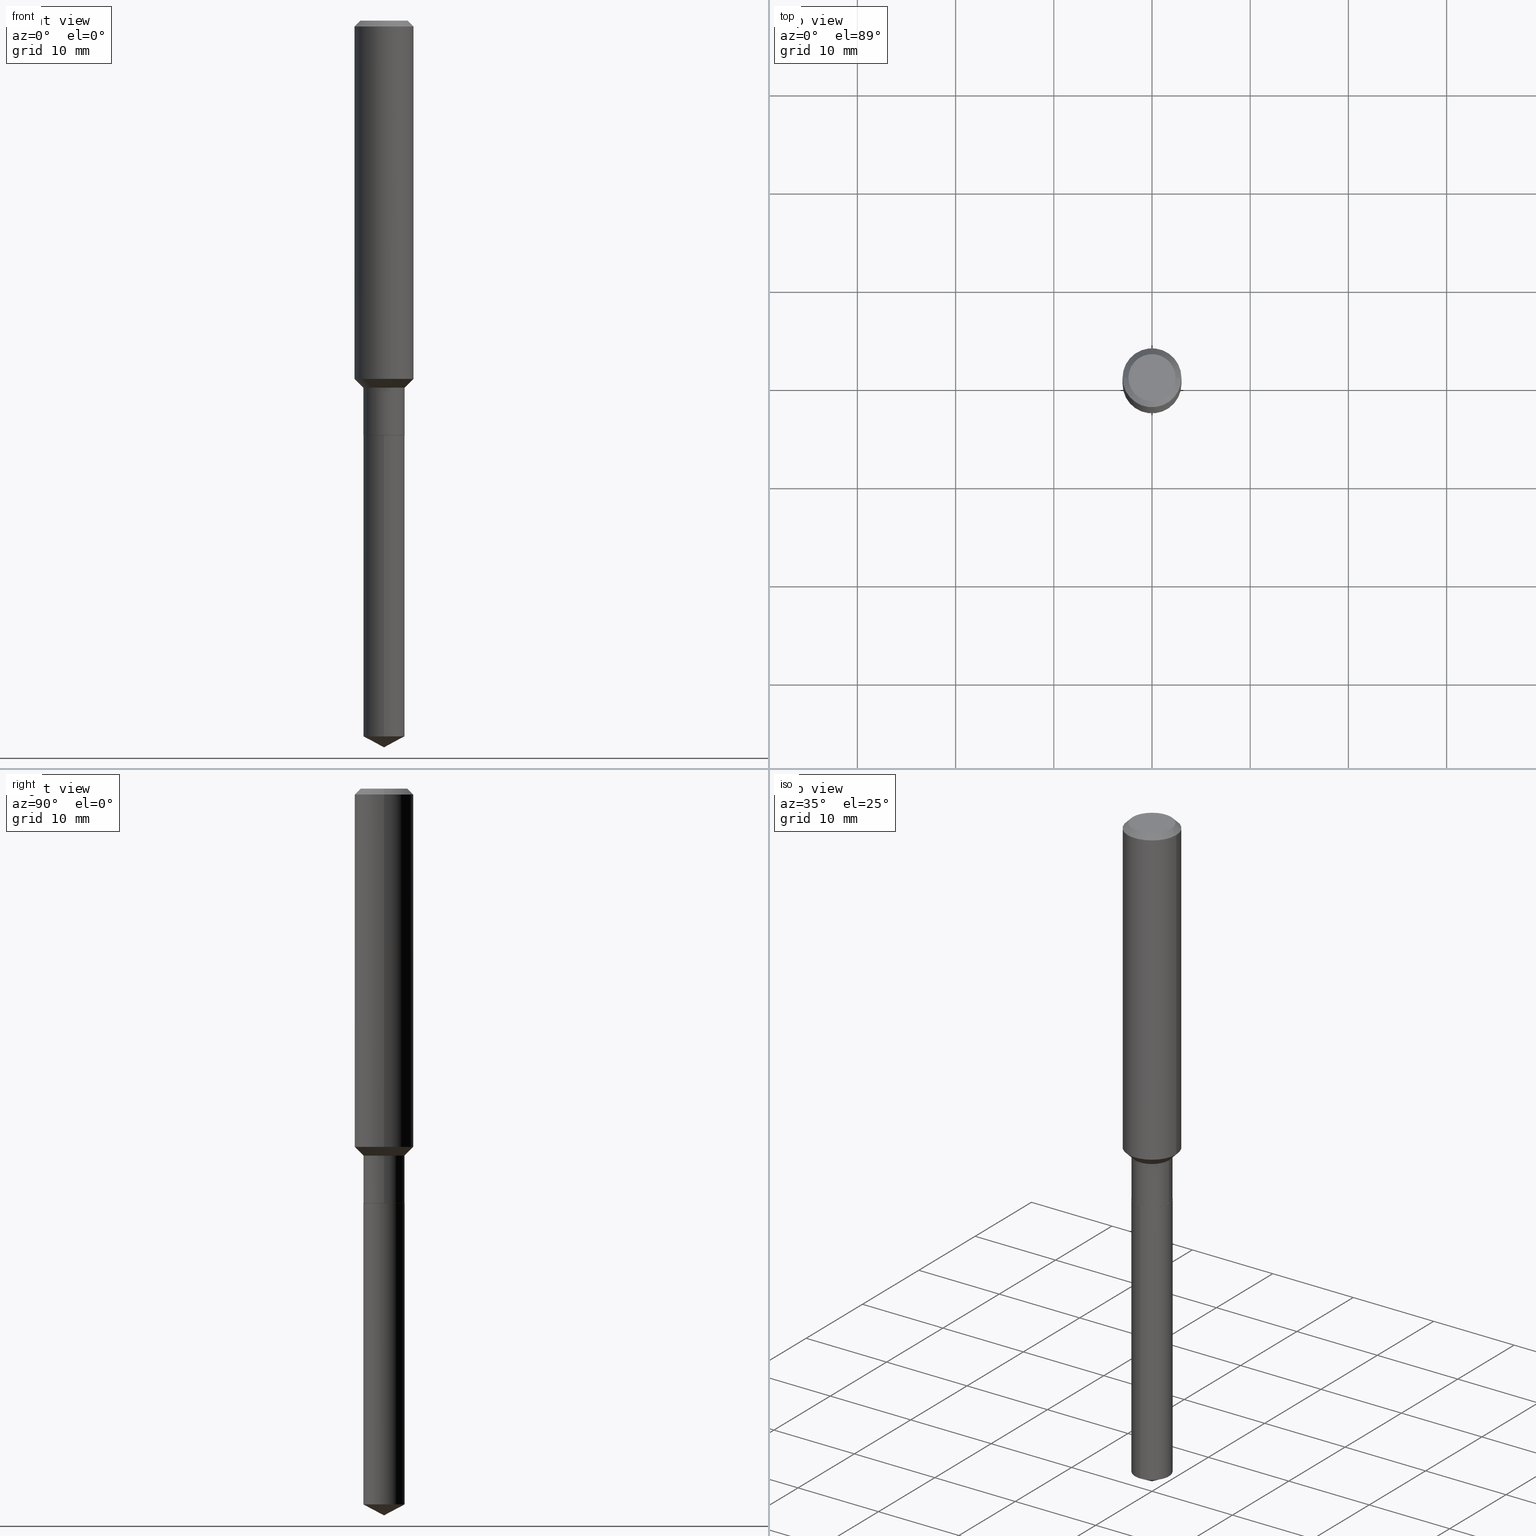
[diagram: canonical four-view strip — front | top / right | iso, engineering-drawing reading convention]
A machine part, canonical four-view strip (front | top / right | iso — engineering-drawing reading convention). The complete STEP part file that produces these views, byte-faithful:
ISO-10303-21;
HEADER;
FILE_DESCRIPTION (( 'STEP AP203' ),
    '1' );
FILE_NAME ('65172.STEP',
    '2024-04-24T20:55:12',
    ( '' ),
    ( '' ),
    'SwSTEP 2.0',
    'SolidWorks 2023',
    '' );
FILE_SCHEMA (( 'CONFIG_CONTROL_DESIGN' ));
ENDSEC;

DATA;
#1 = DIRECTION ( 'NONE',  ( -0.7071067811865459074, 2.468850131082240100E-15, -0.7071067811865491270 ) ) ;
#2 = CARTESIAN_POINT ( 'NONE',  ( -5.774910134445841753E-16, -0.08270000000001001550, -2.869427630001595286 ) ) ;
#3 = CARTESIAN_POINT ( 'NONE',  ( 0.000000000000000000, 0.000000000000000000, 0.000000000000000000 ) ) ;
#4 = CARTESIAN_POINT ( 'NONE',  ( -0.1181000000000000799, 8.391509709326788873E-16, -5.809262341591047988E-30 ) ) ;
#5 = FACE_OUTER_BOUND ( 'NONE', #310, .T. ) ;
#6 = DIRECTION ( 'NONE',  ( 1.000000000000000000, -6.982962677686267499E-15, 4.876176775795936353E-29 ) ) ;
#7 = VECTOR ( 'NONE', #84, 39.37007874015748143 ) ;
#8 = CONICAL_SURFACE ( 'NONE', #143, 0.1180999999999999966, 0.7853981633974460586 ) ;
#9 = PERSON_AND_ORGANIZATION ( #115, #89 ) ;
#10 = EDGE_LOOP ( 'NONE', ( #465, #201, #277, #60 ) ) ;
#11 = ORIENTED_EDGE ( 'NONE', *, *, #250, .T. ) ;
#12 = CC_DESIGN_PERSON_AND_ORGANIZATION_ASSIGNMENT ( #86, #437, ( #482 ) ) ;
#13 = PERSON_AND_ORGANIZATION_ROLE ( 'creator' ) ;
#14 = DIRECTION ( 'NONE',  ( 0.7071067811866320607, -2.468850131083142557E-15, 0.7071067811864629737 ) ) ;
#15 = CONICAL_SURFACE ( 'NONE', #166, 0.1180999999999999966, 0.7853981633974460586 ) ;
#16 = ORIENTED_EDGE ( 'NONE', *, *, #432, .F. ) ;
#17 = FACE_OUTER_BOUND ( 'NONE', #321, .T. ) ;
#18 = ORIENTED_EDGE ( 'NONE', *, *, #230, .F. ) ;
#19 = CALENDAR_DATE ( 2024, 24, 4 ) ;
#20 = VERTEX_POINT ( 'NONE', #2 ) ;
#21 = CARTESIAN_POINT ( 'NONE',  ( 0.08219999999999999529, -6.375095776593697590E-15, -1.661499999999999977 ) ) ;
#22 = EDGE_CURVE ( 'NONE', #346, #85, #257, .T. ) ;
#23 = MANIFOLD_SOLID_BREP ( 'Body-Move/Copy2[2]', #420 ) ;
#24 = AXIS2_PLACEMENT_3D ( 'NONE', #96, #401, #54 ) ;
#25 = ADVANCED_FACE ( 'NONE', ( #158 ), #15, .T. ) ;
#26 = DIRECTION ( 'NONE',  ( 1.000000000000000000, -6.982962677686266711E-15, 0.000000000000000000 ) ) ;
#27 = APPROVAL ( #309, 'UNSPECIFIED' ) ;
#28 = LINE ( 'NONE', #342, #485 ) ;
#29 = AXIS2_PLACEMENT_3D ( 'NONE', #379, #217, #144 ) ;
#30 = CIRCLE ( 'NONE', #220, 0.1181000000000001632 ) ;
#31 = CARTESIAN_POINT ( 'NONE',  ( 0.000000000000000000, 0.000000000000000000, 0.000000000000000000 ) ) ;
#32 = ADVANCED_FACE ( 'NONE', ( #423 ), #219, .T. ) ;
#33 = CARTESIAN_POINT ( 'NONE',  ( 0.000000000000000000, 0.000000000000000000, 0.000000000000000000 ) ) ;
#34 =( NAMED_UNIT ( * ) SI_UNIT ( $, .STERADIAN. ) SOLID_ANGLE_UNIT ( ) );
#35 = AXIS2_PLACEMENT_3D ( 'NONE', #42, #191, #411 ) ;
#36 = CARTESIAN_POINT ( 'NONE',  ( 0.08219999999999999529, -6.375095776593697590E-15, -1.661499999999999977 ) ) ;
#37 = LINE ( 'NONE', #146, #188 ) ;
#38 = CARTESIAN_POINT ( 'NONE',  ( 0.1181000000000000799, -8.246878922347486570E-16, 5.758764772215004644E-30 ) ) ;
#39 = DIRECTION ( 'NONE',  ( 1.000000000000000000, -6.982962677686272233E-15, 0.000000000000000000 ) ) ;
#40 = APPLICATION_CONTEXT ( 'configuration controlled 3d designs of mechanical parts and assemblies' ) ;
#41 = EDGE_LOOP ( 'NONE', ( #229, #361, #237, #271 ) ) ;
#42 = CARTESIAN_POINT ( 'NONE',  ( 7.017160943428417536E-29, -1.001845967804132223E-14, -2.869427630001595730 ) ) ;
#43 = CC_DESIGN_PERSON_AND_ORGANIZATION_ASSIGNMENT ( #315, #278, ( #318 ) ) ;
#44 = FACE_OUTER_BOUND ( 'NONE', #170, .T. ) ;
#45 = VERTEX_POINT ( 'NONE', #288 ) ;
#46 = APPROVAL_STATUS ( 'not_yet_approved' ) ;
#47 = VECTOR ( 'NONE', #468, 39.37007874015748143 ) ;
#48 = AXIS2_PLACEMENT_3D ( 'NONE', #194, #452, #422 ) ;
#49 = EDGE_CURVE ( 'NONE', #470, #370, #117, .T. ) ;
#50 = ORIENTED_EDGE ( 'NONE', *, *, #103, .F. ) ;
#51 = SECURITY_CLASSIFICATION_LEVEL ( 'unclassified' ) ;
#52 = EDGE_LOOP ( 'NONE', ( #399, #208, #444, #105 ) ) ;
#53 = APPROVAL_DATE_TIME ( #95, #27 ) ;
#54 = DIRECTION ( 'NONE',  ( 1.000000000000000000, -6.982962677686266711E-15, 0.000000000000000000 ) ) ;
#55 = ORIENTED_EDGE ( 'NONE', *, *, #461, .T. ) ;
#56 = PERSON_AND_ORGANIZATION_ROLE ( 'design_supplier' ) ;
#57 = DIRECTION ( 'NONE',  ( 1.000000000000000000, -6.982962677686267499E-15, 4.875432709231658792E-29 ) ) ;
#58 = AXIS2_PLACEMENT_3D ( 'NONE', #101, #216, #311 ) ;
#59 = CIRCLE ( 'NONE', #347, 0.08219999999999999529 ) ;
#60 = ORIENTED_EDGE ( 'NONE', *, *, #111, .F. ) ;
#61 = EDGE_CURVE ( 'NONE', #357, #177, #488, .T. ) ;
#62 = CARTESIAN_POINT ( 'NONE',  ( 4.063146421476604662E-29, -5.801096244487885918E-15, -1.661499999999999977 ) ) ;
#63 = ORIENTED_EDGE ( 'NONE', *, *, #140, .T. ) ;
#64 = ORIENTED_EDGE ( 'NONE', *, *, #150, .T. ) ;
#65 = EDGE_CURVE ( 'NONE', #177, #20, #317, .T. ) ;
#66 = LOCAL_TIME ( 16, 55, 12.00000000000000000, #348 ) ;
#67 = CARTESIAN_POINT ( 'NONE',  ( 0.08270000000000000961, -6.376841517263119883E-15, -1.661000000000000032 ) ) ;
#68 = DIRECTION ( 'NONE',  ( -1.000000000000000000, 6.982962677686266711E-15, 0.000000000000000000 ) ) ;
#69 = LINE ( 'NONE', #490, #308 ) ;
#70 = CARTESIAN_POINT ( 'NONE',  ( 7.017160943428417536E-29, -1.001845967804132223E-14, -2.869427630001595730 ) ) ;
#71 = VECTOR ( 'NONE', #279, 39.37007874015748143 ) ;
#72 = CC_DESIGN_APPROVAL ( #293, ( #377 ) ) ;
#73 = CARTESIAN_POINT ( 'NONE',  ( 0.1180999999999999966, -9.071566814582237199E-16, -0.02362000000000014088 ) ) ;
#74 = DIRECTION ( 'NONE',  ( -6.982962677686265922E-15, -1.000000000000000000, 3.303322846026920670E-15 ) ) ;
#75 = FACE_OUTER_BOUND ( 'NONE', #132, .T. ) ;
#76 = LINE ( 'NONE', #305, #299 ) ;
#77 = ADVANCED_FACE ( 'NONE', ( #44 ), #404, .T. ) ;
#78 = CIRCLE ( 'NONE', #380, 0.08219999999999999529 ) ;
#79 = VECTOR ( 'NONE', #155, 39.37007874015748143 ) ;
#80 = APPLICATION_PROTOCOL_DEFINITION ( 'international standard', 'config_control_design', 1994, #225 ) ;
#81 = LINE ( 'NONE', #228, #88 ) ;
#82 = ORIENTED_EDGE ( 'NONE', *, *, #150, .F. ) ;
#83 = CARTESIAN_POINT ( 'NONE',  ( -0.08269999999999998186, -4.549397651366317893E-15, -1.471300000000000274 ) ) ;
#84 = DIRECTION ( 'NONE',  ( -2.445468806185136877E-29, 3.491481338843145188E-15, 1.000000000000000000 ) ) ;
#85 = VERTEX_POINT ( 'NONE', #344 ) ;
#86 = PERSON_AND_ORGANIZATION ( #115, #89 ) ;
#87 = DATE_TIME_ROLE ( 'classification_date' ) ;
#88 = VECTOR ( 'NONE', #383, 39.37007874015748143 ) ;
#89 = ORGANIZATION ( 'UNSPECIFIED', 'UNSPECIFIED', '' ) ;
#90 = VERTEX_POINT ( 'NONE', #407 ) ;
#91 = DIRECTION ( 'NONE',  ( 1.000000000000000000, 0.000000000000000000, 0.000000000000000000 ) ) ;
#92 = EDGE_LOOP ( 'NONE', ( #205, #403, #396, #394 ) ) ;
#93 = DIRECTION ( 'NONE',  ( -2.445468806185136597E-29, 3.491481338843145583E-15, 1.000000000000000000 ) ) ;
#94 = ORIENTED_EDGE ( 'NONE', *, *, #483, .T. ) ;
#95 = DATE_AND_TIME ( #127, #429 ) ;
#96 = CARTESIAN_POINT ( 'NONE',  ( 5.776197320209327532E-31, -8.246878922347559293E-17, -0.02362000000000014088 ) ) ;
#97 = AXIS2_PLACEMENT_3D ( 'NONE', #212, #438, #173 ) ;
#98 = ORIENTED_EDGE ( 'NONE', *, *, #323, .T. ) ;
#99 = CARTESIAN_POINT ( 'NONE',  ( 4.063146421476604662E-29, -5.801096244487885918E-15, -1.661499999999999977 ) ) ;
#100 = EDGE_LOOP ( 'NONE', ( #463, #11 ) ) ;
#101 = CARTESIAN_POINT ( 'NONE',  ( -8.915572758393984802E-28, 1.272848678311759619E-13, 36.45667874015747856 ) ) ;
#102 = DIMENSIONAL_EXPONENTS ( 1.000000000000000000, 0.000000000000000000, 0.000000000000000000, 0.000000000000000000, 0.000000000000000000, 0.000000000000000000, 0.000000000000000000 ) ;
#103 = EDGE_CURVE ( 'NONE', #20, #442, #37, .T. ) ;
#104 = DIRECTION ( 'NONE',  ( 1.000000000000000000, -6.982962677686265922E-15, 4.876176775795935793E-29 ) ) ;
#105 = ORIENTED_EDGE ( 'NONE', *, *, #153, .F. ) ;
#106 = EDGE_CURVE ( 'NONE', #434, #139, #78, .T. ) ;
#107 = DIRECTION ( 'NONE',  ( -2.445522768568436429E-29, 3.491404061638911732E-15, 1.000000000000000000 ) ) ;
#108 = AXIS2_PLACEMENT_3D ( 'NONE', #263, #372, #26 ) ;
#109 = APPROVAL_PERSON_ORGANIZATION ( #388, #418, #199 ) ;
#110 = DIRECTION ( 'NONE',  ( 1.000000000000000000, -6.982962677686262766E-15, 0.000000000000000000 ) ) ;
#111 = EDGE_CURVE ( 'NONE', #370, #430, #121, .T. ) ;
#112 = DIRECTION ( 'NONE',  ( -2.445522768568436709E-29, 3.491404061638911732E-15, 1.000000000000000000 ) ) ;
#113 = CIRCLE ( 'NONE', #264, 0.08269999999999999574 ) ;
#114 = LINE ( 'NONE', #187, #300 ) ;
#115 = PERSON ( 'UNSPECIFIED', 'UNSPECIFIED', 'UNSPECIFIED', ('UNSPECIFIED'), ('UNSPECIFIED'), ('UNSPECIFIED') ) ;
#116 = CARTESIAN_POINT ( 'NONE',  ( 4.063146421476604662E-29, -5.801096244487885918E-15, -1.661499999999999977 ) ) ;
#117 = LINE ( 'NONE', #4, #7 ) ;
#118 = DIRECTION ( 'NONE',  ( -2.445468806185136597E-29, 3.491481338843145583E-15, 1.000000000000000000 ) ) ;
#119 = CARTESIAN_POINT ( 'NONE',  ( 5.876188424736729334E-16, 0.08269999999998998985, -2.869427630001596174 ) ) ;
#120 = CC_DESIGN_PERSON_AND_ORGANIZATION_ASSIGNMENT ( #431, #13, ( #377 ) ) ;
#121 = CIRCLE ( 'NONE', #108, 0.1180999999999999966 ) ;
#122 = CIRCLE ( 'NONE', #176, 0.09447999999999998066 ) ;
#123 = FACE_OUTER_BOUND ( 'NONE', #100, .T. ) ;
#124 = DIRECTION ( 'NONE',  ( 6.273719981627751877E-15, 0.8829475928589277656, 0.4694715627858890294 ) ) ;
#125 = ORIENTED_EDGE ( 'NONE', *, *, #425, .T. ) ;
#126 = CALENDAR_DATE ( 2024, 24, 4 ) ;
#127 = CALENDAR_DATE ( 2024, 24, 4 ) ;
#128 = ORIENTED_EDGE ( 'NONE', *, *, #250, .F. ) ;
#129 = DATE_AND_TIME ( #19, #131 ) ;
#130 = AXIS2_PLACEMENT_3D ( 'NONE', #459, #481, #39 ) ;
#131 = LOCAL_TIME ( 16, 55, 12.00000000000000000, #242 ) ;
#132 = EDGE_LOOP ( 'NONE', ( #164, #98, #82, #316 ) ) ;
#133 = COORDINATED_UNIVERSAL_TIME_OFFSET ( 5, 0, .BEHIND. ) ;
#134 = FACE_OUTER_BOUND ( 'NONE', #307, .T. ) ;
#135 = ADVANCED_FACE ( 'NONE', ( #182 ), #448, .T. ) ;
#136 = ORIENTED_EDGE ( 'NONE', *, *, #415, .F. ) ;
#137 = MECHANICAL_CONTEXT ( 'NONE', #225, 'mechanical' ) ;
#138 = CARTESIAN_POINT ( 'NONE',  ( 0.000000000000000000, 0.000000000000000000, 0.000000000000000000 ) ) ;
#139 = VERTEX_POINT ( 'NONE', #335 ) ;
#140 = EDGE_CURVE ( 'NONE', #177, #204, #28, .T. ) ;
#141 = CYLINDRICAL_SURFACE ( 'NONE', #327, 0.08269999999999999574 ) ;
#142 = VECTOR ( 'NONE', #14, 39.37007874015748143 ) ;
#143 = AXIS2_PLACEMENT_3D ( 'NONE', #215, #371, #181 ) ;
#144 = DIRECTION ( 'NONE',  ( -6.982962677686265922E-15, -1.000000000000000000, 3.303322846026920670E-15 ) ) ;
#145 = CARTESIAN_POINT ( 'NONE',  ( 0.09447999999999998066, -7.704367267948738690E-16, -1.928573779296752193E-17 ) ) ;
#146 = CARTESIAN_POINT ( 'NONE',  ( -5.774910134446135604E-16, -0.08270000000000579665, -1.661499999999999755 ) ) ;
#147 = AXIS2_PLACEMENT_3D ( 'NONE', #99, #276, #436 ) ;
#148 = DESIGN_CONTEXT ( 'detailed design', #40, 'design' ) ;
#149 = DIRECTION ( 'NONE',  ( -2.445468806185136597E-29, 3.491481338843145583E-15, 1.000000000000000000 ) ) ;
#150 = EDGE_CURVE ( 'NONE', #90, #387, #197, .T. ) ;
#151 = CARTESIAN_POINT ( 'NONE',  ( 3.511448658801237790E-29, -5.013418054444873531E-15, -1.435900000000000176 ) ) ;
#152 = LOCAL_TIME ( 16, 55, 12.00000000000000000, #133 ) ;
#153 = EDGE_CURVE ( 'NONE', #204, #442, #113, .T. ) ;
#154 = LENGTH_MEASURE_WITH_UNIT ( LENGTH_MEASURE( 0.02539999999999999897 ), #157 );
#155 = DIRECTION ( 'NONE',  ( -2.445468806185136877E-29, 3.491481338843145188E-15, 1.000000000000000000 ) ) ;
#156 = DIRECTION ( 'NONE',  ( -2.445522768568436429E-29, 3.491404061638911732E-15, 1.000000000000000000 ) ) ;
#157 =( LENGTH_UNIT ( ) NAMED_UNIT ( * ) SI_UNIT ( $, .METRE. ) );
#158 = FACE_OUTER_BOUND ( 'NONE', #313, .T. ) ;
#159 = AXIS2_PLACEMENT_3D ( 'NONE', #33, #268, #184 ) ;
#160 = ADVANCED_FACE ( 'NONE', ( #409 ), #282, .T. ) ;
#161 = ORIENTED_EDGE ( 'NONE', *, *, #218, .T. ) ;
#162 = DATE_AND_TIME ( #319, #381 ) ;
#163 = VERTEX_POINT ( 'NONE', #262 ) ;
#164 = ORIENTED_EDGE ( 'NONE', *, *, #22, .T. ) ;
#165 = APPROVAL_DATE_TIME ( #162, #418 ) ;
#166 = AXIS2_PLACEMENT_3D ( 'NONE', #386, #224, #68 ) ;
#167 = EDGE_CURVE ( 'NONE', #90, #163, #76, .T. ) ;
#168 = CC_DESIGN_APPROVAL ( #418, ( #340 ) ) ;
#169 = CYLINDRICAL_SURFACE ( 'NONE', #258, 0.08269999999999999574 ) ;
#170 = EDGE_LOOP ( 'NONE', ( #393, #280, #200, #214 ) ) ;
#171 = ORIENTED_EDGE ( 'NONE', *, *, #389, .T. ) ;
#172 = ORIENTED_EDGE ( 'NONE', *, *, #153, .T. ) ;
#173 = DIRECTION ( 'NONE',  ( 1.000000000000000000, -6.982962677686266711E-15, 4.876176775795936353E-29 ) ) ;
#174 = ORIENTED_EDGE ( 'NONE', *, *, #61, .F. ) ;
#175 = CYLINDRICAL_SURFACE ( 'NONE', #97, 0.1181000000000000799 ) ;
#176 = AXIS2_PLACEMENT_3D ( 'NONE', #406, #295, #338 ) ;
#177 = VERTEX_POINT ( 'NONE', #119 ) ;
#178 = EDGE_CURVE ( 'NONE', #357, #20, #81, .T. ) ;
#179 = FACE_OUTER_BOUND ( 'NONE', #472, .T. ) ;
#180 = ORIENTED_EDGE ( 'NONE', *, *, #167, .T. ) ;
#181 = DIRECTION ( 'NONE',  ( -1.000000000000000000, 6.982962677686266711E-15, 0.000000000000000000 ) ) ;
#182 = FACE_OUTER_BOUND ( 'NONE', #424, .T. ) ;
#183 = DIRECTION ( 'NONE',  ( -2.445468806185136597E-29, 3.491481338843145583E-15, 1.000000000000000000 ) ) ;
#184 = DIRECTION ( 'NONE',  ( 1.000000000000000000, -6.982962677686266711E-15, 4.876176775795936353E-29 ) ) ;
#185 = LINE ( 'NONE', #83, #336 ) ;
#186 = ADVANCED_FACE ( 'NONE', ( #360 ), #477, .T. ) ;
#187 = CARTESIAN_POINT ( 'NONE',  ( -0.1180999999999999966, 7.422191030112725094E-16, -0.02362000000000014088 ) ) ;
#188 = VECTOR ( 'NONE', #107, 39.37007874015748143 ) ;
#189 =( GEOMETRIC_REPRESENTATION_CONTEXT ( 3 ) GLOBAL_UNCERTAINTY_ASSIGNED_CONTEXT ( ( #445 ) ) GLOBAL_UNIT_ASSIGNED_CONTEXT ( ( #345, #456, #34 ) ) REPRESENTATION_CONTEXT ( 'NONE', 'WORKASPACE' ) );
#190 = ADVANCED_FACE ( 'NONE', ( #5 ), #367, .T. ) ;
#191 = DIRECTION ( 'NONE',  ( -2.445522768568436709E-29, 3.491404061638911732E-15, 1.000000000000000000 ) ) ;
#192 = DIRECTION ( 'NONE',  ( 1.000000000000000000, -6.982962677686262766E-15, 0.000000000000000000 ) ) ;
#193 = CARTESIAN_POINT ( 'NONE',  ( 4.063146421476604662E-29, -5.801096244487885918E-15, -1.661499999999999977 ) ) ;
#194 = CARTESIAN_POINT ( 'NONE',  ( 2.358133508849003952E-46, -3.366789680499277518E-32, -9.642868896486260050E-18 ) ) ;
#195 = ORIENTED_EDGE ( 'NONE', *, *, #297, .F. ) ;
#196 = ADVANCED_FACE ( 'NONE', ( #428 ), #175, .T. ) ;
#197 = CIRCLE ( 'NONE', #475, 0.08269999999999998186 ) ;
#198 = VECTOR ( 'NONE', #287, 39.37007874015748143 ) ;
#199 = APPROVAL_ROLE ( '' ) ;
#200 = ORIENTED_EDGE ( 'NONE', *, *, #22, .F. ) ;
#201 = ORIENTED_EDGE ( 'NONE', *, *, #352, .T. ) ;
#202 = PERSON_AND_ORGANIZATION ( #115, #89 ) ;
#203 = FACE_OUTER_BOUND ( 'NONE', #52, .T. ) ;
#204 = VERTEX_POINT ( 'NONE', #395 ) ;
#205 = ORIENTED_EDGE ( 'NONE', *, *, #323, .F. ) ;
#206 = EDGE_CURVE ( 'NONE', #139, #85, #244, .T. ) ;
#207 = AXIS2_PLACEMENT_3D ( 'NONE', #414, #112, #74 ) ;
#208 = ORIENTED_EDGE ( 'NONE', *, *, #65, .T. ) ;
#209 = DIRECTION ( 'NONE',  ( 1.000000000000000000, -6.982962677686270655E-15, 0.000000000000000000 ) ) ;
#210 = ADVANCED_FACE ( 'NONE', ( #369 ), #169, .T. ) ;
#211 = ORIENTED_EDGE ( 'NONE', *, *, #425, .F. ) ;
#212 = CARTESIAN_POINT ( 'NONE',  ( 0.000000000000000000, 0.000000000000000000, 0.000000000000000000 ) ) ;
#213 = CIRCLE ( 'NONE', #236, 0.1181000000000001632 ) ;
#214 = ORIENTED_EDGE ( 'NONE', *, *, #218, .F. ) ;
#215 = CARTESIAN_POINT ( 'NONE',  ( 5.776197320209327532E-31, -8.246878922347559293E-17, -0.02362000000000014088 ) ) ;
#216 = DIRECTION ( 'NONE',  ( -2.445522768568436709E-29, 3.491404061638911732E-15, 1.000000000000000000 ) ) ;
#217 = DIRECTION ( 'NONE',  ( -2.445522768568436709E-29, 3.491404061638911732E-15, 1.000000000000000000 ) ) ;
#218 = EDGE_CURVE ( 'NONE', #434, #346, #398, .T. ) ;
#219 = CYLINDRICAL_SURFACE ( 'NONE', #29, 0.08269999999999999574 ) ;
#220 = AXIS2_PLACEMENT_3D ( 'NONE', #247, #402, #209 ) ;
#221 = CARTESIAN_POINT ( 'NONE',  ( 3.598018254540192216E-29, -5.137016493839921505E-15, -1.471300000000000274 ) ) ;
#222 = ADVANCED_FACE ( 'NONE', ( #179 ), #390, .T. ) ;
#223 = DIRECTION ( 'NONE',  ( 1.000000000000000000, -6.982962677686272233E-15, 0.000000000000000000 ) ) ;
#224 = DIRECTION ( 'NONE',  ( 2.445468806185136597E-29, -3.491481338843145583E-15, -1.000000000000000000 ) ) ;
#225 = APPLICATION_CONTEXT ( 'configuration controlled 3d designs of mechanical parts and assemblies' ) ;
#226 = AXIS2_PLACEMENT_3D ( 'NONE', #478, #284, #57 ) ;
#227 = DIRECTION ( 'NONE',  ( -2.445468806185136597E-29, 3.491481338843145583E-15, 1.000000000000000000 ) ) ;
#228 = CARTESIAN_POINT ( 'NONE',  ( 7.124606716947576812E-29, -1.017211338532847667E-14, -2.913400000000000212 ) ) ;
#229 = ORIENTED_EDGE ( 'NONE', *, *, #297, .T. ) ;
#230 = EDGE_CURVE ( 'NONE', #330, #430, #446, .T. ) ;
#231 = CARTESIAN_POINT ( 'NONE',  ( -5.774910134446135604E-16, -0.08270000000000579665, -1.661499999999999755 ) ) ;
#232 = DIRECTION ( 'NONE',  ( -2.445522768568436709E-29, 3.491404061638911732E-15, 1.000000000000000000 ) ) ;
#233 = ORIENTED_EDGE ( 'NONE', *, *, #352, .F. ) ;
#234 = PERSON_AND_ORGANIZATION ( #115, #89 ) ;
#235 = ORIENTED_EDGE ( 'NONE', *, *, #61, .T. ) ;
#236 = AXIS2_PLACEMENT_3D ( 'NONE', #151, #334, #450 ) ;
#237 = ORIENTED_EDGE ( 'NONE', *, *, #260, .F. ) ;
#238 = CARTESIAN_POINT ( 'NONE',  ( 4.063146421476604662E-29, -5.801096244487885918E-15, -1.661499999999999977 ) ) ;
#239 = ORIENTED_EDGE ( 'NONE', *, *, #483, .F. ) ;
#240 = ORIENTED_EDGE ( 'NONE', *, *, #303, .F. ) ;
#241 = PLANE ( 'NONE',  #421 ) ;
#242 = COORDINATED_UNIVERSAL_TIME_OFFSET ( 5, 0, .BEHIND. ) ;
#243 = AXIS2_PLACEMENT_3D ( 'NONE', #302, #149, #301 ) ;
#244 = LINE ( 'NONE', #363, #71 ) ;
#245 = ORIENTED_EDGE ( 'NONE', *, *, #230, .T. ) ;
#246 = ADVANCED_FACE ( 'NONE', ( #17 ), #241, .F. ) ;
#247 = CARTESIAN_POINT ( 'NONE',  ( 3.511448658801237790E-29, -5.013418054444873531E-15, -1.435900000000000176 ) ) ;
#248 = ORIENTED_EDGE ( 'NONE', *, *, #178, .F. ) ;
#249 = DIRECTION ( 'NONE',  ( -6.982962677686265922E-15, -1.000000000000000000, 6.606645692053841341E-15 ) ) ;
#250 = EDGE_CURVE ( 'NONE', #330, #45, #328, .T. ) ;
#251 = CARTESIAN_POINT ( 'NONE',  ( 7.124786033947283552E-29, -1.017185659317880752E-14, -2.913400000000000212 ) ) ;
#252 = DIRECTION ( 'NONE',  ( -2.445522768568436709E-29, 3.491404061638911732E-15, 1.000000000000000000 ) ) ;
#253 = CC_DESIGN_DATE_AND_TIME_ASSIGNMENT ( #129, #87, ( #340 ) ) ;
#254 = DIRECTION ( 'NONE',  ( -2.445468806185136597E-29, 3.491481338843145583E-15, 1.000000000000000000 ) ) ;
#255 = CYLINDRICAL_SURFACE ( 'NONE', #283, 0.08269999999999999574 ) ;
#256 = DIRECTION ( 'NONE',  ( 1.000000000000000000, -6.982962677686266711E-15, 0.000000000000000000 ) ) ;
#257 = CIRCLE ( 'NONE', #130, 0.08270000000000000961 ) ;
#258 = AXIS2_PLACEMENT_3D ( 'NONE', #138, #93, #329 ) ;
#259 = CARTESIAN_POINT ( 'NONE',  ( 4.061923687073511860E-29, -5.799350503818465203E-15, -1.661000000000000032 ) ) ;
#260 = EDGE_CURVE ( 'NONE', #430, #370, #440, .T. ) ;
#261 = FACE_OUTER_BOUND ( 'NONE', #325, .T. ) ;
#262 = CARTESIAN_POINT ( 'NONE',  ( 0.1181000000000001632, -5.838105946679621793E-15, -1.435900000000000176 ) ) ;
#263 = CARTESIAN_POINT ( 'NONE',  ( 5.776197320209327532E-31, -8.246878922347559293E-17, -0.02362000000000014088 ) ) ;
#264 = AXIS2_PLACEMENT_3D ( 'NONE', #419, #252, #267 ) ;
#265 = APPROVAL_PERSON_ORGANIZATION ( #202, #27, #275 ) ;
#266 = DIRECTION ( 'NONE',  ( -0.7071067811865482389, 7.493145998870357316E-15, 0.7071067811865467956 ) ) ;
#267 = DIRECTION ( 'NONE',  ( -6.982962677686265922E-15, -1.000000000000000000, 3.303322846026920670E-15 ) ) ;
#268 = DIRECTION ( 'NONE',  ( -2.445468806185136597E-29, 3.491481338843145583E-15, 1.000000000000000000 ) ) ;
#269 = CALENDAR_DATE ( 2024, 24, 4 ) ;
#270 = ADVANCED_FACE ( 'NONE', ( #203 ), #141, .T. ) ;
#271 = ORIENTED_EDGE ( 'NONE', *, *, #487, .F. ) ;
#272 = CONICAL_SURFACE ( 'NONE', #454, 0.08219999999999999529, 0.7853981633975678500 ) ;
#273 = PERSON_AND_ORGANIZATION ( #115, #89 ) ;
#274 = ORIENTED_EDGE ( 'NONE', *, *, #65, .F. ) ;
#275 = APPROVAL_ROLE ( '' ) ;
#276 = DIRECTION ( 'NONE',  ( 2.445522768568436429E-29, -3.491404061638911732E-15, -1.000000000000000000 ) ) ;
#277 = ORIENTED_EDGE ( 'NONE', *, *, #487, .T. ) ;
#278 = PERSON_AND_ORGANIZATION_ROLE ( 'creator' ) ;
#279 = DIRECTION ( 'NONE',  ( -0.7071067811866320607, 7.493145998870660238E-15, 0.7071067811864629737 ) ) ;
#280 = ORIENTED_EDGE ( 'NONE', *, *, #206, .T. ) ;
#281 = ADVANCED_FACE ( 'NONE', ( #134 ), #441, .F. ) ;
#282 = CONICAL_SURFACE ( 'NONE', #243, 0.08269999999999998186, 0.7853981633974492782 ) ;
#283 = AXIS2_PLACEMENT_3D ( 'NONE', #31, #118, #6 ) ;
#284 = DIRECTION ( 'NONE',  ( -2.445468806185136597E-29, 3.491481338843145583E-15, 1.000000000000000000 ) ) ;
#285 = EDGE_LOOP ( 'NONE', ( #18, #351, #171, #364 ) ) ;
#286 = CC_DESIGN_PERSON_AND_ORGANIZATION_ASSIGNMENT ( #234, #353, ( #340 ) ) ;
#287 = DIRECTION ( 'NONE',  ( -2.445468806185136877E-29, 3.491481338843145188E-15, 1.000000000000000000 ) ) ;
#288 = CARTESIAN_POINT ( 'NONE',  ( -0.09447999999999998066, 7.009847083995354710E-16, -1.928573779297727792E-17 ) ) ;
#289 = VECTOR ( 'NONE', #124, 39.37007874015748854 ) ;
#290 = FACE_OUTER_BOUND ( 'NONE', #285, .T. ) ;
#291 = LINE ( 'NONE', #412, #198 ) ;
#292 = AXIS2_PLACEMENT_3D ( 'NONE', #320, #332, #324 ) ;
#293 = APPROVAL ( #359, 'UNSPECIFIED' ) ;
#294 = DIRECTION ( 'NONE',  ( -2.445468806185136597E-29, 3.491481338843145583E-15, 1.000000000000000000 ) ) ;
#295 = DIRECTION ( 'NONE',  ( -2.445468806185136597E-29, 3.491481338843145583E-15, 1.000000000000000000 ) ) ;
#296 = PRODUCT_DEFINITION_SHAPE ( 'NONE', 'NONE',  #377 ) ;
#297 = EDGE_CURVE ( 'NONE', #163, #470, #30, .T. ) ;
#298 = DIRECTION ( 'NONE',  ( 1.000000000000000000, -6.982962677686262766E-15, 0.000000000000000000 ) ) ;
#299 = VECTOR ( 'NONE', #457, 39.37007874015748143 ) ;
#300 = VECTOR ( 'NONE', #1, 39.37007874015748143 ) ;
#301 = DIRECTION ( 'NONE',  ( 1.000000000000000000, -6.982962677686262766E-15, 0.000000000000000000 ) ) ;
#302 = CARTESIAN_POINT ( 'NONE',  ( 3.598018254540192216E-29, -5.137016493839921505E-15, -1.471300000000000274 ) ) ;
#303 = EDGE_CURVE ( 'NONE', #139, #434, #59, .T. ) ;
#304 = DIRECTION ( 'NONE',  ( -2.445468806185136597E-29, 3.491481338843145583E-15, 1.000000000000000000 ) ) ;
#305 = CARTESIAN_POINT ( 'NONE',  ( 0.08269999999999998186, -5.714507507284574607E-15, -1.471300000000000274 ) ) ;
#306 = AXIS2_PLACEMENT_3D ( 'NONE', #455, #417, #192 ) ;
#307 = EDGE_LOOP ( 'NONE', ( #474, #172 ) ) ;
#308 = VECTOR ( 'NONE', #376, 39.37007874015748143 ) ;
#309 = APPROVAL_STATUS ( 'not_yet_approved' ) ;
#310 = EDGE_LOOP ( 'NONE', ( #174, #439, #274 ) ) ;
#311 = DIRECTION ( 'NONE',  ( -6.982962677686267499E-15, -1.000000000000000000, 3.541896320645593212E-15 ) ) ;
#312 = ADVANCED_BREP_SHAPE_REPRESENTATION ( '65172', ( #354, #23, #486 ), #189 ) ;
#313 = EDGE_LOOP ( 'NONE', ( #128, #245, #356, #479 ) ) ;
#314 = CC_DESIGN_PERSON_AND_ORGANIZATION_ASSIGNMENT ( #273, #56, ( #318 ) ) ;
#315 = PERSON_AND_ORGANIZATION ( #115, #89 ) ;
#316 = ORIENTED_EDGE ( 'NONE', *, *, #374, .F. ) ;
#317 = CIRCLE ( 'NONE', #326, 0.08269999999999999574 ) ;
#318 = PRODUCT_DEFINITION_FORMATION_WITH_SPECIFIED_SOURCE ( 'ANY', '', #482, .NOT_KNOWN. ) ;
#319 = CALENDAR_DATE ( 2024, 24, 4 ) ;
#320 = CARTESIAN_POINT ( 'NONE',  ( -8.915572758393984802E-28, 1.272848678311759619E-13, 36.45667874015747856 ) ) ;
#321 = EDGE_LOOP ( 'NONE', ( #469, #240 ) ) ;
#322 = COORDINATED_UNIVERSAL_TIME_OFFSET ( 5, 0, .BEHIND. ) ;
#323 = EDGE_CURVE ( 'NONE', #85, #387, #291, .T. ) ;
#324 = DIRECTION ( 'NONE',  ( -6.982962677686267499E-15, -1.000000000000000000, 3.541896320645593212E-15 ) ) ;
#325 = EDGE_LOOP ( 'NONE', ( #366, #433, #161, #136 ) ) ;
#326 = AXIS2_PLACEMENT_3D ( 'NONE', #70, #232, #249 ) ;
#327 = AXIS2_PLACEMENT_3D ( 'NONE', #62, #473, #355 ) ;
#328 = CIRCLE ( 'NONE', #226, 0.09447999999999998066 ) ;
#329 = DIRECTION ( 'NONE',  ( 1.000000000000000000, -6.982962677686267499E-15, 4.876176775795936353E-29 ) ) ;
#330 = VERTEX_POINT ( 'NONE', #145 ) ;
#331 = EDGE_CURVE ( 'NONE', #45, #330, #122, .T. ) ;
#332 = DIRECTION ( 'NONE',  ( -2.445522768568436709E-29, 3.491404061638911732E-15, 1.000000000000000000 ) ) ;
#333 = CARTESIAN_POINT ( 'NONE',  ( 4.063146421476604662E-29, -5.801096244487885918E-15, -1.661499999999999977 ) ) ;
#334 = DIRECTION ( 'NONE',  ( -2.445468806185136597E-29, 3.491481338843145583E-15, 1.000000000000000000 ) ) ;
#335 = CARTESIAN_POINT ( 'NONE',  ( -0.08219999999999999529, -5.214380888518972792E-15, -1.661499999999999977 ) ) ;
#336 = VECTOR ( 'NONE', #266, 39.37007874015748143 ) ;
#337 = CARTESIAN_POINT ( 'NONE',  ( 7.124787606345704001E-29, -1.017185659317880752E-14, -2.913400000000000212 ) ) ;
#338 = DIRECTION ( 'NONE',  ( 1.000000000000000000, -6.982962677686267499E-15, 4.875432709231658792E-29 ) ) ;
#339 = DIRECTION ( 'NONE',  ( -2.445468806185136597E-29, 3.491481338843145583E-15, 1.000000000000000000 ) ) ;
#340 = SECURITY_CLASSIFICATION ( '', '', #51 ) ;
#341 = CARTESIAN_POINT ( 'NONE',  ( -0.08269999999999998186, -4.880564656355590136E-15, -1.471300000000000274 ) ) ;
#342 = CARTESIAN_POINT ( 'NONE',  ( 5.876188424736433512E-16, 0.08269999999999419482, -1.661500000000000199 ) ) ;
#343 = PRODUCT_RELATED_PRODUCT_CATEGORY ( 'detail', '', ( #482 ) ) ;
#344 = CARTESIAN_POINT ( 'NONE',  ( -0.08270000000000000961, -4.880564656355590136E-15, -1.661000000000000032 ) ) ;
#345 =( CONVERSION_BASED_UNIT ( 'INCH', #154 ) LENGTH_UNIT ( ) NAMED_UNIT ( #102 ) );
#346 = VERTEX_POINT ( 'NONE', #67 ) ;
#347 = AXIS2_PLACEMENT_3D ( 'NONE', #365, #254, #256 ) ;
#348 = COORDINATED_UNIVERSAL_TIME_OFFSET ( 5, 0, .BEHIND. ) ;
#349 = ADVANCED_FACE ( 'NONE', ( #290 ), #8, .T. ) ;
#350 = ORIENTED_EDGE ( 'NONE', *, *, #167, .F. ) ;
#351 = ORIENTED_EDGE ( 'NONE', *, *, #331, .F. ) ;
#352 = EDGE_CURVE ( 'NONE', #470, #163, #213, .T. ) ;
#353 = PERSON_AND_ORGANIZATION_ROLE ( 'classification_officer' ) ;
#354 = MANIFOLD_SOLID_BREP ( 'Body-Move/Copy2[1]', #410 ) ;
#355 = DIRECTION ( 'NONE',  ( -6.982962677686265922E-15, -1.000000000000000000, 3.303322846026920670E-15 ) ) ;
#356 = ORIENTED_EDGE ( 'NONE', *, *, #260, .T. ) ;
#357 = VERTEX_POINT ( 'NONE', #251 ) ;
#358 = AXIS2_PLACEMENT_3D ( 'NONE', #333, #294, #447 ) ;
#359 = APPROVAL_STATUS ( 'not_yet_approved' ) ;
#360 = FACE_OUTER_BOUND ( 'NONE', #10, .T. ) ;
#361 = ORIENTED_EDGE ( 'NONE', *, *, #49, .T. ) ;
#362 = CC_DESIGN_DATE_AND_TIME_ASSIGNMENT ( #426, #427, ( #377 ) ) ;
#363 = CARTESIAN_POINT ( 'NONE',  ( -0.08219999999999999529, -5.217030115693083993E-15, -1.661499999999999977 ) ) ;
#364 = ORIENTED_EDGE ( 'NONE', *, *, #111, .T. ) ;
#365 = CARTESIAN_POINT ( 'NONE',  ( 4.063146421476604662E-29, -5.801096244487885918E-15, -1.661499999999999977 ) ) ;
#366 = ORIENTED_EDGE ( 'NONE', *, *, #206, .F. ) ;
#367 = CONICAL_SURFACE ( 'NONE', #58, 74.04434902938285745, 1.082104136236482717 ) ;
#368 = AXIS2_PLACEMENT_3D ( 'NONE', #221, #339, #298 ) ;
#369 = FACE_OUTER_BOUND ( 'NONE', #92, .T. ) ;
#370 = VERTEX_POINT ( 'NONE', #408 ) ;
#371 = DIRECTION ( 'NONE',  ( 2.445468806185136597E-29, -3.491481338843145583E-15, -1.000000000000000000 ) ) ;
#372 = DIRECTION ( 'NONE',  ( -2.445468806185136597E-29, 3.491481338843145583E-15, 1.000000000000000000 ) ) ;
#373 = DIRECTION ( 'NONE',  ( 1.000000000000000000, -6.982962677686266711E-15, 0.000000000000000000 ) ) ;
#374 = EDGE_CURVE ( 'NONE', #346, #90, #69, .T. ) ;
#375 = CIRCLE ( 'NONE', #207, 0.08269999999999999574 ) ;
#376 = DIRECTION ( 'NONE',  ( -2.445468806185136877E-29, 3.491481338843145188E-15, 1.000000000000000000 ) ) ;
#377 = PRODUCT_DEFINITION ( 'UNKNOWN', '', #318, #148 ) ;
#378 = CARTESIAN_POINT ( 'NONE',  ( -0.1181000000000001632, -4.174267083512193756E-15, -1.435900000000000176 ) ) ;
#379 = CARTESIAN_POINT ( 'NONE',  ( 4.063146421476604662E-29, -5.801096244487885918E-15, -1.661499999999999977 ) ) ;
#380 = AXIS2_PLACEMENT_3D ( 'NONE', #193, #183, #373 ) ;
#381 = LOCAL_TIME ( 16, 55, 12.00000000000000000, #435 ) ;
#382 = ADVANCED_FACE ( 'NONE', ( #261 ), #272, .T. ) ;
#383 = DIRECTION ( 'NONE',  ( -6.165590087286821830E-15, -0.8829475928589244349, 0.4694715627858953022 ) ) ;
#384 = EDGE_LOOP ( 'NONE', ( #94, #63, #16, #50 ) ) ;
#385 = LINE ( 'NONE', #38, #79 ) ;
#386 = CARTESIAN_POINT ( 'NONE',  ( 5.776197320209327532E-31, -8.246878922347559293E-17, -0.02362000000000014088 ) ) ;
#387 = VERTEX_POINT ( 'NONE', #341 ) ;
#388 = PERSON_AND_ORGANIZATION ( #115, #89 ) ;
#389 = EDGE_CURVE ( 'NONE', #45, #370, #114, .T. ) ;
#390 = CONICAL_SURFACE ( 'NONE', #292, 74.04434902938285745, 1.082104136236482717 ) ;
#391 = EDGE_LOOP ( 'NONE', ( #64, #125, #195, #350 ) ) ;
#392 = SHAPE_DEFINITION_REPRESENTATION ( #296, #312 ) ;
#393 = ORIENTED_EDGE ( 'NONE', *, *, #106, .T. ) ;
#394 = ORIENTED_EDGE ( 'NONE', *, *, #461, .F. ) ;
#395 = CARTESIAN_POINT ( 'NONE',  ( 5.876188424736729334E-16, 0.08269999999999419482, -1.661500000000000199 ) ) ;
#396 = ORIENTED_EDGE ( 'NONE', *, *, #374, .T. ) ;
#397 = ADVANCED_FACE ( 'NONE', ( #123 ), #416, .F. ) ;
#398 = LINE ( 'NONE', #21, #142 ) ;
#399 = ORIENTED_EDGE ( 'NONE', *, *, #140, .F. ) ;
#400 = CIRCLE ( 'NONE', #35, 0.08269999999999999574 ) ;
#401 = DIRECTION ( 'NONE',  ( -2.445468806185136597E-29, 3.491481338843145583E-15, 1.000000000000000000 ) ) ;
#402 = DIRECTION ( 'NONE',  ( -2.445468806185136597E-29, 3.491481338843145583E-15, 1.000000000000000000 ) ) ;
#403 = ORIENTED_EDGE ( 'NONE', *, *, #415, .T. ) ;
#404 = CONICAL_SURFACE ( 'NONE', #358, 0.08219999999999999529, 0.7853981633975678500 ) ;
#405 = CIRCLE ( 'NONE', #413, 0.08270000000000000961 ) ;
#406 = CARTESIAN_POINT ( 'NONE',  ( 4.716267017698007905E-46, -6.733579360998555036E-32, -1.928573779297252010E-17 ) ) ;
#407 = CARTESIAN_POINT ( 'NONE',  ( 0.08269999999999998186, -5.714507507284574607E-15, -1.471300000000000274 ) ) ;
#408 = CARTESIAN_POINT ( 'NONE',  ( -0.1180999999999999966, -1.708792450901494916E-15, -0.02362000000000014088 ) ) ;
#409 = FACE_OUTER_BOUND ( 'NONE', #391, .T. ) ;
#410 = CLOSED_SHELL ( 'NONE', ( #32, #222, #190, #270, #281 ) ) ;
#411 = DIRECTION ( 'NONE',  ( -6.982962677686265922E-15, -1.000000000000000000, 6.606645692053841341E-15 ) ) ;
#412 = CARTESIAN_POINT ( 'NONE',  ( -0.08269999999999999574, 5.876188424736028234E-16, -4.067959319640806904E-30 ) ) ;
#413 = AXIS2_PLACEMENT_3D ( 'NONE', #259, #304, #223 ) ;
#414 = CARTESIAN_POINT ( 'NONE',  ( 4.063146421476604662E-29, -5.801096244487885918E-15, -1.661499999999999977 ) ) ;
#415 = EDGE_CURVE ( 'NONE', #85, #346, #405, .T. ) ;
#416 = PLANE ( 'NONE',  #48 ) ;
#417 = DIRECTION ( 'NONE',  ( -2.445468806185136597E-29, 3.491481338843145583E-15, 1.000000000000000000 ) ) ;
#418 = APPROVAL ( #46, 'UNSPECIFIED' ) ;
#419 = CARTESIAN_POINT ( 'NONE',  ( 4.063146421476604662E-29, -5.801096244487885918E-15, -1.661499999999999977 ) ) ;
#420 = CLOSED_SHELL ( 'NONE', ( #77, #25, #196, #160, #453, #210, #135, #186, #349, #397, #246, #382 ) ) ;
#421 = AXIS2_PLACEMENT_3D ( 'NONE', #238, #443, #104 ) ;
#422 = DIRECTION ( 'NONE',  ( -1.000000000000000000, 6.982962677686265922E-15, -4.876176775795935793E-29 ) ) ;
#423 = FACE_OUTER_BOUND ( 'NONE', #384, .T. ) ;
#424 = EDGE_LOOP ( 'NONE', ( #211, #55, #180, #233 ) ) ;
#425 = EDGE_CURVE ( 'NONE', #387, #470, #185, .T. ) ;
#426 = DATE_AND_TIME ( #269, #152 ) ;
#427 = DATE_TIME_ROLE ( 'creation_date' ) ;
#428 = FACE_OUTER_BOUND ( 'NONE', #41, .T. ) ;
#429 = LOCAL_TIME ( 16, 55, 12.00000000000000000, #322 ) ;
#430 = VERTEX_POINT ( 'NONE', #73 ) ;
#431 = PERSON_AND_ORGANIZATION ( #115, #89 ) ;
#432 = EDGE_CURVE ( 'NONE', #442, #204, #375, .T. ) ;
#433 = ORIENTED_EDGE ( 'NONE', *, *, #303, .T. ) ;
#434 = VERTEX_POINT ( 'NONE', #36 ) ;
#435 = COORDINATED_UNIVERSAL_TIME_OFFSET ( 5, 0, .BEHIND. ) ;
#436 = DIRECTION ( 'NONE',  ( 6.982962677686265922E-15, 1.000000000000000000, -3.491404061638911732E-15 ) ) ;
#437 = PERSON_AND_ORGANIZATION_ROLE ( 'design_owner' ) ;
#438 = DIRECTION ( 'NONE',  ( -2.445468806185136597E-29, 3.491481338843145583E-15, 1.000000000000000000 ) ) ;
#439 = ORIENTED_EDGE ( 'NONE', *, *, #178, .T. ) ;
#440 = CIRCLE ( 'NONE', #24, 0.1180999999999999966 ) ;
#441 = PLANE ( 'NONE',  #147 ) ;
#442 = VERTEX_POINT ( 'NONE', #231 ) ;
#443 = DIRECTION ( 'NONE',  ( -2.438088387897960049E-29, 3.491481338843145188E-15, 1.000000000000000000 ) ) ;
#444 = ORIENTED_EDGE ( 'NONE', *, *, #103, .T. ) ;
#445 = UNCERTAINTY_MEASURE_WITH_UNIT (LENGTH_MEASURE( 1.000000000000000082E-05 ), #345, 'distance_accuracy_value', 'NONE');
#446 = LINE ( 'NONE', #480, #47 ) ;
#447 = DIRECTION ( 'NONE',  ( 1.000000000000000000, -6.982962677686266711E-15, 0.000000000000000000 ) ) ;
#448 = CONICAL_SURFACE ( 'NONE', #306, 0.08269999999999998186, 0.7853981633974492782 ) ;
#449 = CC_DESIGN_SECURITY_CLASSIFICATION ( #340, ( #318 ) ) ;
#450 = DIRECTION ( 'NONE',  ( 1.000000000000000000, -6.982962677686270655E-15, 0.000000000000000000 ) ) ;
#451 = DIRECTION ( 'NONE',  ( -2.445468806185136597E-29, 3.491481338843145583E-15, 1.000000000000000000 ) ) ;
#452 = DIRECTION ( 'NONE',  ( 2.438088387897960049E-29, -3.491481338843145188E-15, -1.000000000000000000 ) ) ;
#453 = ADVANCED_FACE ( 'NONE', ( #75 ), #255, .T. ) ;
#454 = AXIS2_PLACEMENT_3D ( 'NONE', #116, #227, #458 ) ;
#455 = CARTESIAN_POINT ( 'NONE',  ( 3.598018254540192216E-29, -5.137016493839921505E-15, -1.471300000000000274 ) ) ;
#456 =( NAMED_UNIT ( * ) PLANE_ANGLE_UNIT ( ) SI_UNIT ( $, .RADIAN. ) );
#457 = DIRECTION ( 'NONE',  ( 0.7071067811865482389, -2.468850131082264555E-15, 0.7071067811865467956 ) ) ;
#458 = DIRECTION ( 'NONE',  ( 1.000000000000000000, -6.982962677686266711E-15, 0.000000000000000000 ) ) ;
#459 = CARTESIAN_POINT ( 'NONE',  ( 4.061923687073511860E-29, -5.799350503818465203E-15, -1.661000000000000032 ) ) ;
#460 = APPROVAL_PERSON_ORGANIZATION ( #9, #293, #467 ) ;
#461 = EDGE_CURVE ( 'NONE', #387, #90, #476, .T. ) ;
#462 = APPLICATION_PROTOCOL_DEFINITION ( 'international standard', 'config_control_design', 1994, #40 ) ;
#463 = ORIENTED_EDGE ( 'NONE', *, *, #331, .T. ) ;
#464 = APPROVAL_DATE_TIME ( #466, #293 ) ;
#465 = ORIENTED_EDGE ( 'NONE', *, *, #49, .F. ) ;
#466 = DATE_AND_TIME ( #126, #66 ) ;
#467 = APPROVAL_ROLE ( '' ) ;
#468 = DIRECTION ( 'NONE',  ( 0.7071067811865459074, -7.319954787623249734E-15, -0.7071067811865491270 ) ) ;
#469 = ORIENTED_EDGE ( 'NONE', *, *, #106, .F. ) ;
#470 = VERTEX_POINT ( 'NONE', #378 ) ;
#471 = DIRECTION ( 'NONE',  ( 0.000000000000000000, 0.000000000000000000, 1.000000000000000000 ) ) ;
#472 = EDGE_LOOP ( 'NONE', ( #248, #235, #239 ) ) ;
#473 = DIRECTION ( 'NONE',  ( -2.445522768568436709E-29, 3.491404061638911732E-15, 1.000000000000000000 ) ) ;
#474 = ORIENTED_EDGE ( 'NONE', *, *, #432, .T. ) ;
#475 = AXIS2_PLACEMENT_3D ( 'NONE', #484, #451, #110 ) ;
#476 = CIRCLE ( 'NONE', #368, 0.08269999999999998186 ) ;
#477 = CYLINDRICAL_SURFACE ( 'NONE', #159, 0.1181000000000000799 ) ;
#478 = CARTESIAN_POINT ( 'NONE',  ( 4.716267017698007905E-46, -6.733579360998555036E-32, -1.928573779297252010E-17 ) ) ;
#479 = ORIENTED_EDGE ( 'NONE', *, *, #389, .F. ) ;
#480 = CARTESIAN_POINT ( 'NONE',  ( 0.1180999999999999966, -8.926936027602933910E-16, -0.02362000000000014088 ) ) ;
#481 = DIRECTION ( 'NONE',  ( -2.445468806185136597E-29, 3.491481338843145583E-15, 1.000000000000000000 ) ) ;
#482 = PRODUCT ( '65172', '65172', '', ( #137 ) ) ;
#483 = EDGE_CURVE ( 'NONE', #20, #177, #400, .T. ) ;
#484 = CARTESIAN_POINT ( 'NONE',  ( 3.598018254540192216E-29, -5.137016493839921505E-15, -1.471300000000000274 ) ) ;
#485 = VECTOR ( 'NONE', #156, 39.37007874015748143 ) ;
#486 = AXIS2_PLACEMENT_3D ( 'NONE', #3, #471, #91 ) ;
#487 = EDGE_CURVE ( 'NONE', #163, #430, #385, .T. ) ;
#488 = LINE ( 'NONE', #337, #289 ) ;
#489 = CC_DESIGN_APPROVAL ( #27, ( #318 ) ) ;
#490 = CARTESIAN_POINT ( 'NONE',  ( 0.08269999999999999574, -5.774910134446542854E-16, 4.032598193583239271E-30 ) ) ;
ENDSEC;
END-ISO-10303-21;
